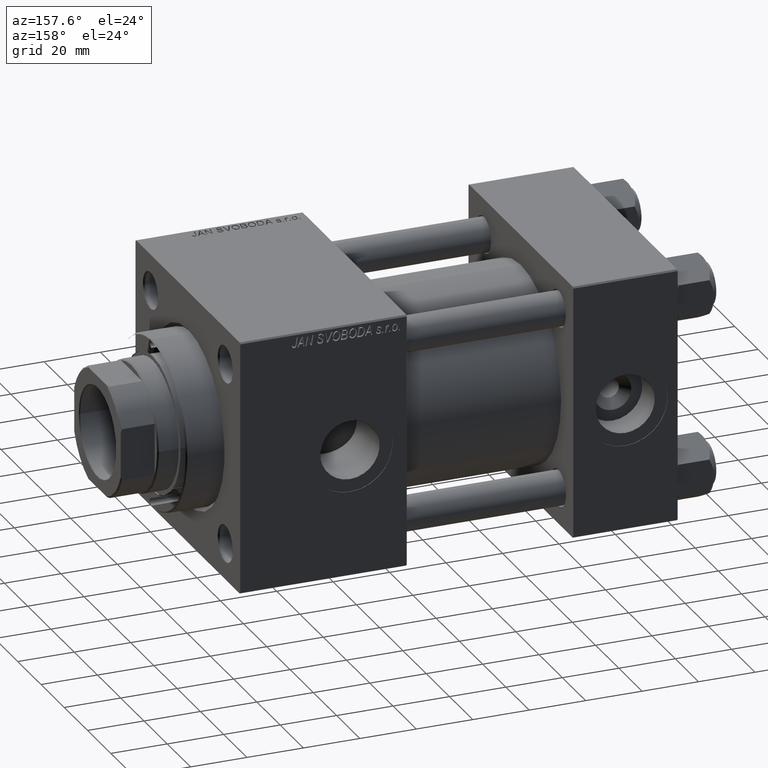
[diagram: clean part render]
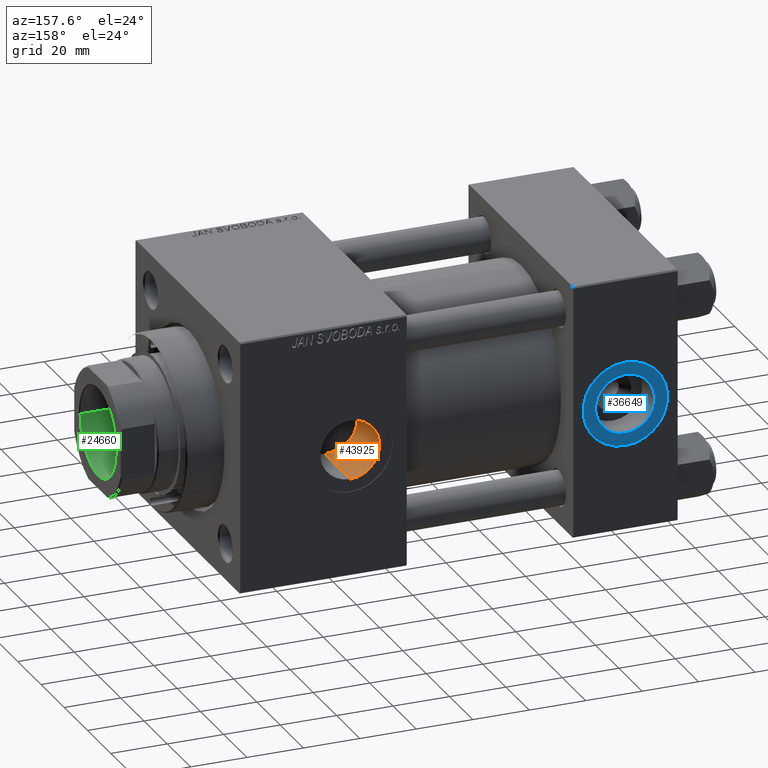
[diagram: same view with three faces highlighted in distinct colors, each labeled with its STEP entity id]
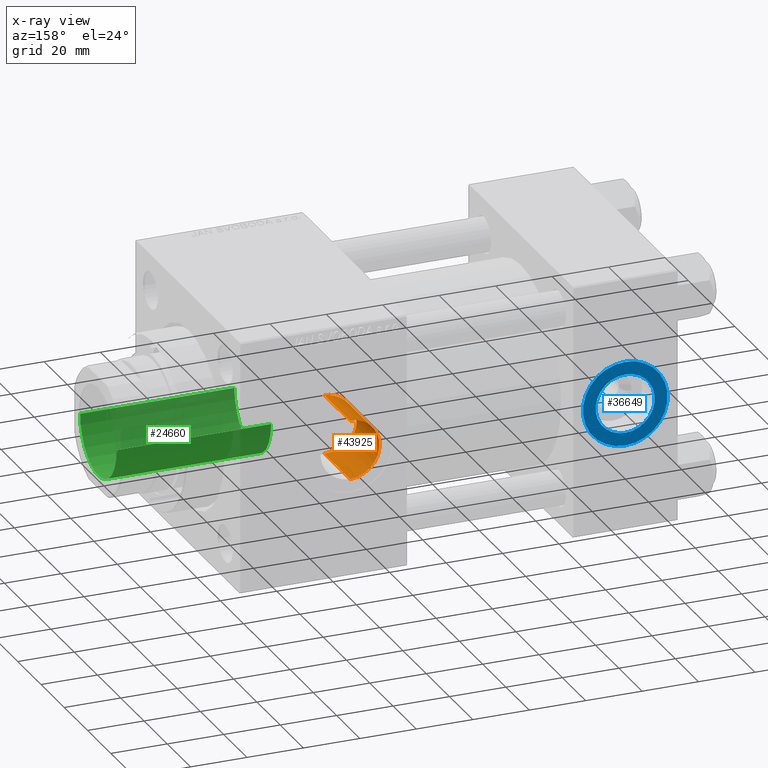
[diagram: x-ray of the same camera — body ghosted, the three highlighted faces saturated]
A machine part, auxiliary view with three faces highlighted in distinct colors.
The next image is the same camera in x-ray (body ghosted, the three faces saturated) — at least one of them is partly hidden behind the body in this view.
Their STEP definitions:

[orange] entity #43925 — the highlighted cylindrical surface (edge-blend (fillet) strip) has radius 10.48 mm, axis along (0, 1, 0).
#67 = CARTESIAN_POINT ( 'NONE',  ( 106.9205644474328949, 24.44339300292596917, 5.278250371298494059 ) ) ;
#314 = CARTESIAN_POINT ( 'NONE',  ( 106.5951675388459705, 24.56748508602188608, -4.674328070843617233 ) ) ;
#1510 = DIRECTION ( 'NONE',  ( 0.000000000000000000, 1.000000000000000000, 0.000000000000000000 ) ) ;
#1551 = ORIENTED_EDGE ( 'NONE', *, *, #19019, .T. ) ;
#2253 = VERTEX_POINT ( 'NONE', #34263 ) ;
#2387 = CARTESIAN_POINT ( 'NONE',  ( 113.6006309434185511, 22.82132339589591652, -10.20748497981750269 ) ) ;
#2635 = CARTESIAN_POINT ( 'NONE',  ( 112.6000436906344930, 22.94823602494485115, -9.919209866290810140 ) ) ;
#3382 = CARTESIAN_POINT ( 'NONE',  ( 113.6024807966723102, 22.82111456472381050, 10.20795265357759973 ) ) ;
#3629 = CARTESIAN_POINT ( 'NONE',  ( 107.6971979191698239, 24.16742604129798266, 6.403892675369895038 ) ) ;
#4021 = DIRECTION ( 'NONE',  ( -0.000000000000000000, 1.000000000000000000, -0.000000000000000000 ) ) ;
#4046 = DIRECTION ( 'NONE',  ( -0.000000000000000000, 1.000000000000000000, -0.000000000000000000 ) ) ;
#4125 = CARTESIAN_POINT ( 'NONE',  ( 105.5896143113014602, 24.97059224946895739, -1.388621070306799821 ) ) ;
#6175 = CARTESIAN_POINT ( 'NONE',  ( 115.9999999999999574, 22.69734786269092908, -10.48000000000001286 ) ) ;
#6684 = CARTESIAN_POINT ( 'NONE',  ( 109.0691750376469287, 23.72760602978986455, -7.889944006337748839 ) ) ;
#7184 = CARTESIAN_POINT ( 'NONE',  ( 106.1986316166709372, 24.72289697108948303, -3.725725694189060633 ) ) ;
#7428 = CARTESIAN_POINT ( 'NONE',  ( 112.6029776176335560, 22.94782015708121747, 9.920166318359219915 ) ) ;
#7679 = CARTESIAN_POINT ( 'NONE',  ( 108.1238065727191042, 24.02420213949847394, -6.921886781690125723 ) ) ;
#7872 = B_SPLINE_CURVE_WITH_KNOTS ( 'NONE', 3,
 ( #6175, #21956, #21691, #2387, #37473, #2635, #33658, #45388, #10506, #41547, #6684, #18389, #7679, #11248, #26765, #30833, #314, #7184, #35159, #7930, #11744, #4125, #15801, #11994, #46622, #42046, #42785, #31336, #26508, #34917, #23194, #46865, #67, #38230, #3629, #22949, #19148, #18894, #45881, #34662, #34412, #10997, #7428, #22707, #3382, #49937, #15065, #30578 ),
 .UNSPECIFIED., .F., .F.,
 ( 4, 2, 2, 2, 2, 2, 2, 2, 2, 2, 2, 2, 2, 2, 2, 2, 2, 2, 2, 2, 2, 2, 2, 4 ),
 ( 0.01463821909121441542, 0.01670930280020108474, 0.01774484465469440206, 0.01878038650918771590, 0.02085147021817438523, 0.02292255392716105455, 0.02395809578165437534, 0.02499363763614769612, 0.02706472134513433422, 0.02810026319962765501, 0.02913580505412097579, 0.03120688876310761389, 0.03224243061760093121, 0.03327797247209425546, 0.03431351432658757972, 0.03534905618108089703, 0.03742013989006751778, 0.03845568174456083510, 0.03949122359905414548, 0.04156230730804073847, 0.04363339101702734535, 0.04466893287152064185, 0.04570447472601393835, 0.04777555843500053134 ),
 .UNSPECIFIED. ) ;
#7930 = CARTESIAN_POINT ( 'NONE',  ( 105.8774204008529125, 24.85211448620741592, -2.735702537687464186 ) ) ;
#9106 = VERTEX_POINT ( 'NONE', #31409 ) ;
#10506 = CARTESIAN_POINT ( 'NONE',  ( 110.7282494435932989, 23.29501474869027788, -9.083392073400762712 ) ) ;
#10997 = CARTESIAN_POINT ( 'NONE',  ( 112.2810024023067257, 22.99792823106282214, 9.803852027551149817 ) ) ;
#11220 = CARTESIAN_POINT ( 'NONE',  ( 116.0000000000000000, 44.80000000000001847, -10.48000000000000043 ) ) ;
#11248 = CARTESIAN_POINT ( 'NONE',  ( 107.6900300022859653, 24.16988760624360566, -6.394633543806203413 ) ) ;
#11710 = CARTESIAN_POINT ( 'NONE',  ( 116.0000000000000000, -29.64191626734007201, -10.48000000000000043 ) ) ;
#11744 = CARTESIAN_POINT ( 'NONE',  ( 105.7929659686117105, 24.88673000804575253, -2.401115563268500619 ) ) ;
#11876 = CYLINDRICAL_SURFACE ( 'NONE', #24113, 10.48000000000000043 ) ;
#11994 = CARTESIAN_POINT ( 'NONE',  ( 105.5198898269284484, 25.00004618454965666, 0.3460486699088876072 ) ) ;
#13193 = DIRECTION ( 'NONE',  ( 0.000000000000000000, 0.000000000000000000, 1.000000000000000000 ) ) ;
#13691 = CIRCLE ( 'NONE', #24209, 10.48000000000000043 ) ;
#14100 = ORIENTED_EDGE ( 'NONE', *, *, #49701, .F. ) ;
#14803 = CARTESIAN_POINT ( 'NONE',  ( 115.9999999999999574, 22.69734786269092908, -10.48000000000001286 ) ) ;
#15065 = CARTESIAN_POINT ( 'NONE',  ( 115.3073892563825495, 22.69734786269092552, 10.48000000000000043 ) ) ;
#15257 = VECTOR ( 'NONE', #4046, 1000.000000000000000 ) ;
#15801 = CARTESIAN_POINT ( 'NONE',  ( 105.5202219243777364, 24.99990696930468914, -0.7020592370721171482 ) ) ;
#18389 = CARTESIAN_POINT ( 'NONE',  ( 108.3518897779276529, 23.95018848110602860, -7.172942060376100493 ) ) ;
#18894 = CARTESIAN_POINT ( 'NONE',  ( 109.0758525530452800, 23.72565358630828669, 7.895767310681550022 ) ) ;
#19019 = EDGE_CURVE ( 'NONE', #20675, #9106, #13691, .T. ) ;
#19148 = CARTESIAN_POINT ( 'NONE',  ( 108.3583976685860080, 23.94811038994633279, 7.179864457733689420 ) ) ;
#19677 = EDGE_LOOP ( 'NONE', ( #14100, #44219, #1551, #46260 ) ) ;
#20675 = VERTEX_POINT ( 'NONE', #11220 ) ;
#21691 = CARTESIAN_POINT ( 'NONE',  ( 114.6166885166040714, 22.72945378449816189, -10.41125041824599151 ) ) ;
#21956 = CARTESIAN_POINT ( 'NONE',  ( 115.3034659601953962, 22.69734786269090776, -10.47999999999999332 ) ) ;
#22707 = CARTESIAN_POINT ( 'NONE',  ( 113.2628663816418992, 22.85945295365116436, 10.12213220648006029 ) ) ;
#22949 = CARTESIAN_POINT ( 'NONE',  ( 108.1304464638024427, 24.02202805608322222, 6.929393258577156267 ) ) ;
#23194 = CARTESIAN_POINT ( 'NONE',  ( 106.1992050399645393, 24.72266741087924657, 3.727330997008741154 ) ) ;
#24113 = AXIS2_PLACEMENT_3D ( 'NONE', #27637, #4021, #39100 ) ;
#24209 = AXIS2_PLACEMENT_3D ( 'NONE', #44492, #1510, #13193 ) ;
#26508 = CARTESIAN_POINT ( 'NONE',  ( 105.8779669537605628, 24.85189244119417040, 2.737634207123015972 ) ) ;
#26765 = CARTESIAN_POINT ( 'NONE',  ( 107.4852564452334889, 24.24127047932947221, -6.119244249603054797 ) ) ;
#27218 = DIRECTION ( 'NONE',  ( -0.000000000000000000, 1.000000000000000000, -0.000000000000000000 ) ) ;
#27637 = CARTESIAN_POINT ( 'NONE',  ( 116.0000000000000000, -29.64191626734007201, 0.000000000000000000 ) ) ;
#28803 = EDGE_CURVE ( 'NONE', #48954, #20675, #31788, .T. ) ;
#30578 = CARTESIAN_POINT ( 'NONE',  ( 116.0000000000000000, 22.69734786269092197, 10.48000000000000043 ) ) ;
#30719 = FACE_OUTER_BOUND ( 'NONE', #19677, .T. ) ;
#30833 = CARTESIAN_POINT ( 'NONE',  ( 106.9171465358876389, 24.44468804556172259, -5.272058887039591468 ) ) ;
#31251 = CARTESIAN_POINT ( 'NONE',  ( 116.0000000000000000, -29.64191626734007201, 10.48000000000000043 ) ) ;
#31336 = CARTESIAN_POINT ( 'NONE',  ( 105.7934469296605471, 24.88653244420935096, 2.403216301759345530 ) ) ;
#31409 = CARTESIAN_POINT ( 'NONE',  ( 116.0000000000000000, 44.80000000000001847, 10.48000000000000043 ) ) ;
#31788 = LINE ( 'NONE', #11710, #47225 ) ;
#33658 = CARTESIAN_POINT ( 'NONE',  ( 112.2769050068437053, 22.99857768367994737, -9.802338176841917772 ) ) ;
#34263 = CARTESIAN_POINT ( 'NONE',  ( 116.0000000000000000, 22.69734786269092197, 10.48000000000000043 ) ) ;
#34412 = CARTESIAN_POINT ( 'NONE',  ( 111.3377099006113014, 23.16297019228597875, 9.410509118438316278 ) ) ;
#34662 = CARTESIAN_POINT ( 'NONE',  ( 110.7388075418619167, 23.29260463244819590, 9.089559278086982275 ) ) ;
#34917 = CARTESIAN_POINT ( 'NONE',  ( 106.0806528163204376, 24.77003135787058241, 3.399521362015801795 ) ) ;
#35159 = CARTESIAN_POINT ( 'NONE',  ( 106.0804400412437190, 24.77011599629383909, -3.398972836081203930 ) ) ;
#35562 = LINE ( 'NONE', #31251, #15257 ) ;
#37473 = CARTESIAN_POINT ( 'NONE',  ( 113.2625725609531031, 22.85946943249185637, -10.12210048819257757 ) ) ;
#38230 = CARTESIAN_POINT ( 'NONE',  ( 107.4914286754354862, 24.23909680393989063, 6.127889787572176949 ) ) ;
#39100 = DIRECTION ( 'NONE',  ( 0.000000000000000000, 0.000000000000000000, 1.000000000000000000 ) ) ;
#41547 = CARTESIAN_POINT ( 'NONE',  ( 109.5910252885425109, 23.57840781445655409, -8.320120710421930355 ) ) ;
#42046 = CARTESIAN_POINT ( 'NONE',  ( 105.6062911791970578, 24.96393005755822259, 1.386124428227904826 ) ) ;
#42785 = CARTESIAN_POINT ( 'NONE',  ( 105.6576090084523969, 24.94255044980511471, 1.727461359525263473 ) ) ;
#43925 = ADVANCED_FACE ( 'NONE', ( #30719 ), #11876, .F. ) ;
#44219 = ORIENTED_EDGE ( 'NONE', *, *, #28803, .T. ) ;
#44492 = CARTESIAN_POINT ( 'NONE',  ( 116.0000000000000000, 44.80000000000001847, 0.000000000000000000 ) ) ;
#45388 = CARTESIAN_POINT ( 'NONE',  ( 111.3305262906433768, 23.16436360660825500, -9.407119406203948486 ) ) ;
#45881 = CARTESIAN_POINT ( 'NONE',  ( 109.5996881253369537, 23.57603182418388599, 8.326838647318266950 ) ) ;
#46251 = EDGE_CURVE ( 'NONE', #2253, #9106, #35562, .T. ) ;
#46260 = ORIENTED_EDGE ( 'NONE', *, *, #46251, .F. ) ;
#46622 = CARTESIAN_POINT ( 'NONE',  ( 105.5374198107919170, 24.99268303089188592, 0.6963761674250767975 ) ) ;
#46865 = CARTESIAN_POINT ( 'NONE',  ( 106.5972116635182658, 24.56669364692478297, 4.678748159390214489 ) ) ;
#47225 = VECTOR ( 'NONE', #27218, 1000.000000000000000 ) ;
#48954 = VERTEX_POINT ( 'NONE', #14803 ) ;
#49701 = EDGE_CURVE ( 'NONE', #48954, #2253, #7872, .T. ) ;
#49937 = CARTESIAN_POINT ( 'NONE',  ( 114.6214610596254033, 22.72910592596695878, 10.41201292843505399 ) ) ;

[blue] entity #36649 — the highlighted planar face has unit normal (0, 1, 0).
#3081 = AXIS2_PLACEMENT_3D ( 'NONE', #19106, #7142, #23403 ) ;
#4036 = EDGE_LOOP ( 'NONE', ( #41783, #49719 ) ) ;
#5129 = CARTESIAN_POINT ( 'NONE',  ( 18.50000000000000000, 44.79999999999998295, -10.48000000000000043 ) ) ;
#5247 = DIRECTION ( 'NONE',  ( 0.000000000000000000, 0.000000000000000000, 1.000000000000000000 ) ) ;
#7142 = DIRECTION ( 'NONE',  ( 0.000000000000000000, 1.000000000000000000, 0.000000000000000000 ) ) ;
#8099 = ORIENTED_EDGE ( 'NONE', *, *, #24864, .F. ) ;
#9391 = FACE_BOUND ( 'NONE', #35653, .T. ) ;
#10117 = AXIS2_PLACEMENT_3D ( 'NONE', #40431, #39671, #47826 ) ;
#10514 = ORIENTED_EDGE ( 'NONE', *, *, #41180, .F. ) ;
#11715 = DIRECTION ( 'NONE',  ( 0.000000000000000000, 0.000000000000000000, 1.000000000000000000 ) ) ;
#11999 = VERTEX_POINT ( 'NONE', #17550 ) ;
#15537 = AXIS2_PLACEMENT_3D ( 'NONE', #43932, #40103, #5247 ) ;
#17550 = CARTESIAN_POINT ( 'NONE',  ( 18.50000000000000000, 44.79999999999998295, 15.00000000000000178 ) ) ;
#18225 = CARTESIAN_POINT ( 'NONE',  ( 18.50000000000000000, 44.79999999999998295, 10.48000000000000043 ) ) ;
#19106 = CARTESIAN_POINT ( 'NONE',  ( 18.50000000000000000, 44.79999999999998295, 0.000000000000000000 ) ) ;
#19116 = CARTESIAN_POINT ( 'NONE',  ( 18.50000000000000000, 44.79999999999998295, 0.000000000000000000 ) ) ;
#19613 = CIRCLE ( 'NONE', #39115, 15.00000000000000178 ) ;
#19695 = VERTEX_POINT ( 'NONE', #5129 ) ;
#20090 = FACE_OUTER_BOUND ( 'NONE', #4036, .T. ) ;
#20457 = DIRECTION ( 'NONE',  ( 0.000000000000000000, 1.000000000000000000, 0.000000000000000000 ) ) ;
#20543 = CIRCLE ( 'NONE', #47359, 15.00000000000000178 ) ;
#21208 = CIRCLE ( 'NONE', #15537, 10.48000000000000043 ) ;
#21519 = CARTESIAN_POINT ( 'NONE',  ( 18.50000000000000355, 44.79999999999998295, -15.00000000000000178 ) ) ;
#23403 = DIRECTION ( 'NONE',  ( 0.000000000000000000, 0.000000000000000000, 1.000000000000000000 ) ) ;
#24864 = EDGE_CURVE ( 'NONE', #25821, #19695, #21208, .T. ) ;
#25821 = VERTEX_POINT ( 'NONE', #18225 ) ;
#26525 = EDGE_CURVE ( 'NONE', #28379, #11999, #19613, .T. ) ;
#28379 = VERTEX_POINT ( 'NONE', #21519 ) ;
#31907 = DIRECTION ( 'NONE',  ( 0.000000000000000000, 0.000000000000000000, 1.000000000000000000 ) ) ;
#32162 = CARTESIAN_POINT ( 'NONE',  ( 18.50000000000000000, 44.79999999999998295, 0.000000000000000000 ) ) ;
#32965 = EDGE_CURVE ( 'NONE', #11999, #28379, #20543, .T. ) ;
#34628 = DIRECTION ( 'NONE',  ( 0.000000000000000000, 1.000000000000000000, 0.000000000000000000 ) ) ;
#34787 = CIRCLE ( 'NONE', #3081, 10.48000000000000043 ) ;
#35653 = EDGE_LOOP ( 'NONE', ( #8099, #10514 ) ) ;
#36649 = ADVANCED_FACE ( 'NONE', ( #9391, #20090 ), #43244, .T. ) ;
#39115 = AXIS2_PLACEMENT_3D ( 'NONE', #19116, #34628, #11715 ) ;
#39671 = DIRECTION ( 'NONE',  ( 0.000000000000000000, 1.000000000000000000, 0.000000000000000000 ) ) ;
#40103 = DIRECTION ( 'NONE',  ( 0.000000000000000000, 1.000000000000000000, 0.000000000000000000 ) ) ;
#40431 = CARTESIAN_POINT ( 'NONE',  ( 18.50000000000000000, 44.79999999999998295, 0.000000000000000000 ) ) ;
#41180 = EDGE_CURVE ( 'NONE', #19695, #25821, #34787, .T. ) ;
#41783 = ORIENTED_EDGE ( 'NONE', *, *, #32965, .T. ) ;
#43244 = PLANE ( 'NONE',  #10117 ) ;
#43932 = CARTESIAN_POINT ( 'NONE',  ( 18.50000000000000000, 44.79999999999998295, 0.000000000000000000 ) ) ;
#47359 = AXIS2_PLACEMENT_3D ( 'NONE', #32162, #20457, #31907 ) ;
#47826 = DIRECTION ( 'NONE',  ( 0.000000000000000000, -0.000000000000000000, 1.000000000000000000 ) ) ;
#49719 = ORIENTED_EDGE ( 'NONE', *, *, #26525, .T. ) ;

[green] entity #24660 — the highlighted cylindrical surface (partial cylindrical patch) has radius 15.75 mm, axis along (1, 0, 0).
#142 = EDGE_CURVE ( 'NONE', #5689, #31519, #33533, .T. ) ;
#1686 = AXIS2_PLACEMENT_3D ( 'NONE', #14454, #49827, #37862 ) ;
#5065 = CIRCLE ( 'NONE', #15606, 15.74999999999999289 ) ;
#5088 = ORIENTED_EDGE ( 'NONE', *, *, #32165, .T. ) ;
#5689 = VERTEX_POINT ( 'NONE', #34914 ) ;
#8464 = DIRECTION ( 'NONE',  ( 1.000000000000000000, 0.000000000000000000, 0.000000000000000000 ) ) ;
#9864 = DIRECTION ( 'NONE',  ( -0.000000000000000000, -0.000000000000000000, 1.000000000000000000 ) ) ;
#10148 = CARTESIAN_POINT ( 'NONE',  ( -15.74999999999998934, 1.928818708657080161E-15, 95.00000000000001421 ) ) ;
#10760 = DIRECTION ( 'NONE',  ( -0.000000000000000000, -0.000000000000000000, 1.000000000000000000 ) ) ;
#11553 = CARTESIAN_POINT ( 'NONE',  ( 0.000000000000000000, 0.000000000000000000, 95.00000000000001421 ) ) ;
#12284 = DIRECTION ( 'NONE',  ( -0.000000000000000000, -0.000000000000000000, 1.000000000000000000 ) ) ;
#13084 = DIRECTION ( 'NONE',  ( 1.000000000000000000, 0.000000000000000000, 0.000000000000000000 ) ) ;
#14454 = CARTESIAN_POINT ( 'NONE',  ( 0.000000000000000000, 0.000000000000000000, 150.0000000000000284 ) ) ;
#15380 = EDGE_CURVE ( 'NONE', #5689, #34737, #50132, .T. ) ;
#15606 = AXIS2_PLACEMENT_3D ( 'NONE', #48204, #21466, #13084 ) ;
#16673 = ORIENTED_EDGE ( 'NONE', *, *, #15380, .F. ) ;
#17633 = CARTESIAN_POINT ( 'NONE',  ( -15.74999999999999289, 1.928818708657080556E-15, 150.0000000000000284 ) ) ;
#19272 = AXIS2_PLACEMENT_3D ( 'NONE', #11553, #12284, #8464 ) ;
#21466 = DIRECTION ( 'NONE',  ( 0.000000000000000000, 0.000000000000000000, 1.000000000000000000 ) ) ;
#22346 = CYLINDRICAL_SURFACE ( 'NONE', #1686, 15.74999999999999289 ) ;
#23115 = EDGE_LOOP ( 'NONE', ( #48012, #16673, #34262, #5088 ) ) ;
#24660 = ADVANCED_FACE ( 'NONE', ( #49326 ), #22346, .F. ) ;
#30235 = VECTOR ( 'NONE', #9864, 1000.000000000000000 ) ;
#30527 = EDGE_CURVE ( 'NONE', #34737, #43733, #45644, .T. ) ;
#31519 = VERTEX_POINT ( 'NONE', #46147 ) ;
#32165 = EDGE_CURVE ( 'NONE', #31519, #43733, #5065, .T. ) ;
#33533 = LINE ( 'NONE', #44991, #30235 ) ;
#34262 = ORIENTED_EDGE ( 'NONE', *, *, #142, .T. ) ;
#34737 = VERTEX_POINT ( 'NONE', #10148 ) ;
#34914 = CARTESIAN_POINT ( 'NONE',  ( 15.74999999999998934, 0.000000000000000000, 95.00000000000001421 ) ) ;
#37521 = VECTOR ( 'NONE', #10760, 1000.000000000000000 ) ;
#37862 = DIRECTION ( 'NONE',  ( 1.000000000000000000, 0.000000000000000000, 0.000000000000000000 ) ) ;
#40664 = CARTESIAN_POINT ( 'NONE',  ( -15.74999999999999289, 1.928818708657080556E-15, 149.6999999999999886 ) ) ;
#43733 = VERTEX_POINT ( 'NONE', #40664 ) ;
#44991 = CARTESIAN_POINT ( 'NONE',  ( 15.74999999999999289, 0.000000000000000000, 150.0000000000000284 ) ) ;
#45644 = LINE ( 'NONE', #17633, #37521 ) ;
#46147 = CARTESIAN_POINT ( 'NONE',  ( 15.74999999999999289, 0.000000000000000000, 149.6999999999999886 ) ) ;
#48012 = ORIENTED_EDGE ( 'NONE', *, *, #30527, .F. ) ;
#48204 = CARTESIAN_POINT ( 'NONE',  ( 0.000000000000000000, 0.000000000000000000, 149.6999999999999886 ) ) ;
#49326 = FACE_OUTER_BOUND ( 'NONE', #23115, .T. ) ;
#49827 = DIRECTION ( 'NONE',  ( -0.000000000000000000, -0.000000000000000000, 1.000000000000000000 ) ) ;
#50132 = CIRCLE ( 'NONE', #19272, 15.74999999999998934 ) ;